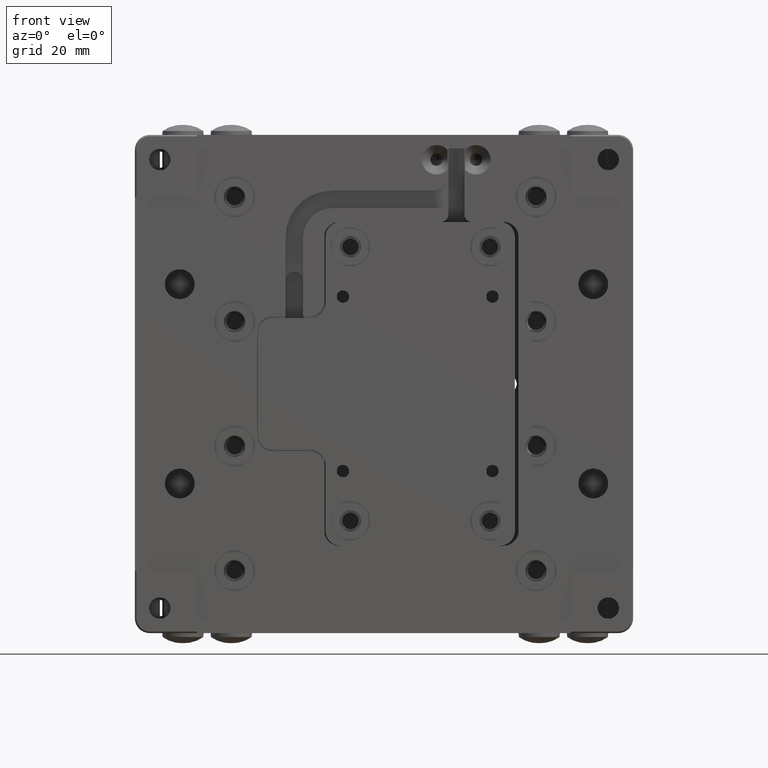
[diagram: clean part render]
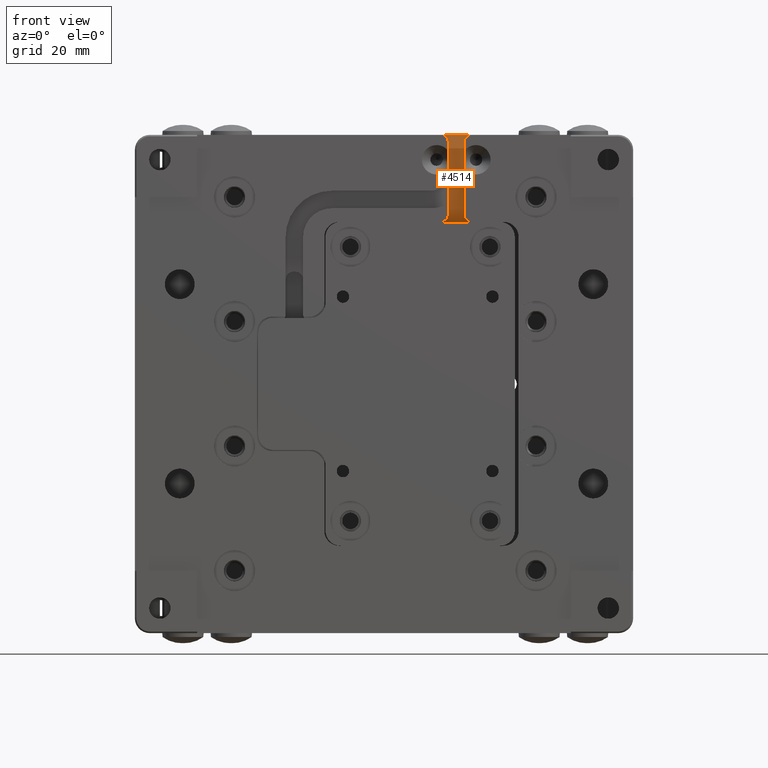
[diagram: same view with one face highlighted and labeled with its STEP entity id]
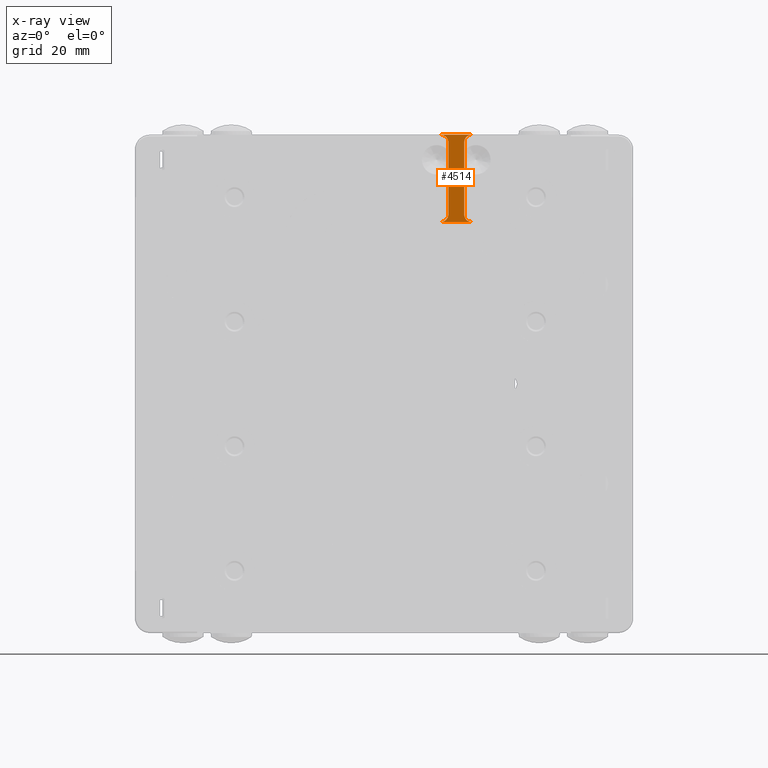
[diagram: x-ray of the same camera — body ghosted, the highlighted face saturated]
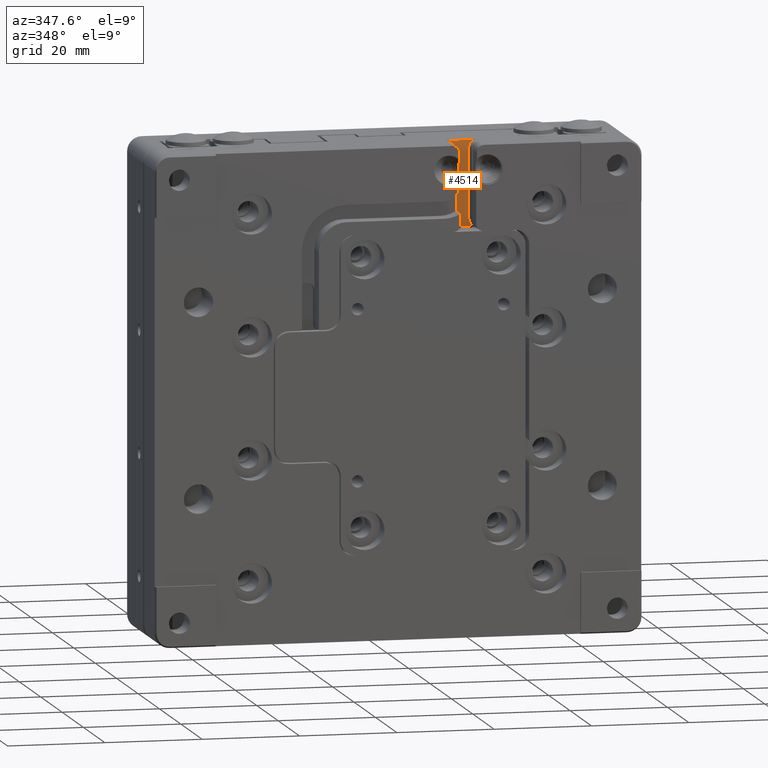
[diagram: same view with one face highlighted and labeled with its STEP entity id]
A machine part, front view. The second image highlights one B-rep face of the part: STEP entity #4514.
The next image is the same camera in x-ray: the body ghosted, the highlighted face saturated — about 0% of this face is hidden behind the body in this view.
A second angle (auxiliary view) of the same face is appended — the face is thin or edge-on in the first view.
In plain terms, the highlighted planar face has unit normal (-0, -1, -0).
Its self-contained STEP definition (entity closure, byte-faithful):
#1197 = CARTESIAN_POINT ( 'NONE',  ( 16.10000000000000100, -3.000000000000000900, 48.50000000000000000 ) ) ;
#1739 = VERTEX_POINT ( 'NONE', #53169 ) ;
#1752 = ORIENTED_EDGE ( 'NONE', *, *, #48388, .T. ) ;
#2410 = CARTESIAN_POINT ( 'NONE',  ( 12.90000000000000200, -3.000000000000003100, 33.80365045915063900 ) ) ;
#3041 = DIRECTION ( 'NONE',  ( -1.000000000000000000, -0.0000000000000000000, -0.0000000000000000000 ) ) ;
#4514 = ADVANCED_FACE ( 'NONE', ( #48471 ), #37076, .T. ) ;
#5496 = CARTESIAN_POINT ( 'NONE',  ( 16.10000000000000100, -3.000000000000000900, 34.00000000000000000 ) ) ;
#6003 = VECTOR ( 'NONE', #31490, 1000.000000000000000 ) ;
#6344 = CARTESIAN_POINT ( 'NONE',  ( 17.60000000000000100, -3.000000000000001800, 32.50000000000000000 ) ) ;
#6695 = CARTESIAN_POINT ( 'NONE',  ( 16.84251470758528800, -3.000000000000000400, 32.69009358273518700 ) ) ;
#6913 = CARTESIAN_POINT ( 'NONE',  ( 12.15748529241225700, -3.000000000000000400, 49.80990641726570800 ) ) ;
#9582 = CARTESIAN_POINT ( 'NONE',  ( 17.59999999999999800, -3.000000000000001300, 50.00000000000000000 ) ) ;
#10454 = VECTOR ( 'NONE', #3041, 1000.000000000000000 ) ;
#10780 = CARTESIAN_POINT ( 'NONE',  ( 11.79262182653892300, -3.000000000000003100, 32.53904098499754100 ) ) ;
#10973 = CARTESIAN_POINT ( 'NONE',  ( 16.39889535832353900, -2.999999999999999600, 33.07968134325136600 ) ) ;
#11190 = CARTESIAN_POINT ( 'NONE',  ( 12.60110464167482100, -2.999999999999999600, 49.42031865675186000 ) ) ;
#11531 = CARTESIAN_POINT ( 'NONE',  ( 17.77123113917000600, -3.000000000000000000, 50.35000000000000900 ) ) ;
#11626 = CARTESIAN_POINT ( 'NONE',  ( 11.40000000000000200, -3.000000000000001300, 50.00000000000000000 ) ) ;
#11844 = EDGE_CURVE ( 'NONE', #20917, #35628, #51323, .T. ) ;
#13770 = ORIENTED_EDGE ( 'NONE', *, *, #29040, .F. ) ;
#13874 = CARTESIAN_POINT ( 'NONE',  ( 17.20737817346107700, -3.000000000000003100, 49.96095901500248700 ) ) ;
#13992 = CARTESIAN_POINT ( 'NONE',  ( 16.10000000000000100, -3.000000000000000000, 41.25000000000000000 ) ) ;
#13998 = EDGE_CURVE ( 'NONE', #37750, #1739, #38936, .T. ) ;
#14369 = CARTESIAN_POINT ( 'NONE',  ( 12.90000000000000200, -3.000000000000000900, 34.00000000000000000 ) ) ;
#14410 = CARTESIAN_POINT ( 'NONE',  ( 12.90000000000000200, -3.000000000000000000, 41.25000000000000700 ) ) ;
#15250 = CARTESIAN_POINT ( 'NONE',  ( 16.13806023374435800, -3.000000000000000400, 33.60955549786709200 ) ) ;
#15475 = CARTESIAN_POINT ( 'NONE',  ( 12.86193976625565200, -3.000000000000000400, 48.89044450213366800 ) ) ;
#15678 = LINE ( 'NONE', #14410, #38346 ) ;
#15843 = DIRECTION ( 'NONE',  ( -0.0000000000000000000, -1.000000000000000000, -0.0000000000000000000 ) ) ;
#18166 = CARTESIAN_POINT ( 'NONE',  ( 16.67817992003763200, -3.000000000000003100, 49.69950026359728700 ) ) ;
#19361 = CARTESIAN_POINT ( 'NONE',  ( 12.15542847055634800, -3.000000000000002700, 32.68932041746860800 ) ) ;
#19411 = CARTESIAN_POINT ( 'NONE',  ( 12.90000000000000400, -3.000000000000000900, 48.50000000000000000 ) ) ;
#19496 = EDGE_CURVE ( 'NONE', #20917, #48445, #41903, .T. ) ;
#19551 = CARTESIAN_POINT ( 'NONE',  ( 16.10000000000000100, -3.000000000000000900, 34.00000000000000000 ) ) ;
#19786 = CARTESIAN_POINT ( 'NONE',  ( 12.90000000000000400, -3.000000000000000900, 48.50000000000000000 ) ) ;
#20917 = VERTEX_POINT ( 'NONE', #51955 ) ;
#21144 = AXIS2_PLACEMENT_3D ( 'NONE', #11531, #15843, #45633 ) ;
#21461 = VERTEX_POINT ( 'NONE', #5496 ) ;
#21630 = ORIENTED_EDGE ( 'NONE', *, *, #28162, .T. ) ;
#22458 = CARTESIAN_POINT ( 'NONE',  ( 16.28932041746861600, -3.000000000000003100, 49.25542847055636000 ) ) ;
#22563 = VECTOR ( 'NONE', #35225, 1000.000000000000000 ) ;
#23661 = CARTESIAN_POINT ( 'NONE',  ( 12.59950026359727500, -3.000000000000002700, 33.07817992003762000 ) ) ;
#23891 = CARTESIAN_POINT ( 'NONE',  ( 11.59872161138881300, -2.999999999999999600, 50.00000000000000000 ) ) ;
#26759 = CARTESIAN_POINT ( 'NONE',  ( 16.10000000000000100, -3.000000000000003100, 48.69634954084936900 ) ) ;
#26977 = B_SPLINE_CURVE_WITH_KNOTS ( 'NONE', 3,
 ( #53695, #23891, #32435, #6913, #36704, #11190, #40992, #15475, #45282, #19786 ),
 .UNSPECIFIED., .F., .F.,
 ( 4, 2, 2, 2, 4 ),
 ( 0.0000000000000000000, 0.2500000000000000000, 0.5000000000000000000, 0.7500000000000000000, 1.000000000000000000 ),
 .UNSPECIFIED. ) ;
#27293 = DIRECTION ( 'NONE',  ( -0.0000000000000000000, -0.0000000000000000000, 1.000000000000000000 ) ) ;
#27962 = CARTESIAN_POINT ( 'NONE',  ( 12.86095901500247700, -3.000000000000003100, 33.60737817346107900 ) ) ;
#27974 = CARTESIAN_POINT ( 'NONE',  ( 17.40127838861150900, -2.999999999999999600, 32.50000000000000000 ) ) ;
#28162 = EDGE_CURVE ( 'NONE', #37750, #51390, #54458, .T. ) ;
#28296 = ORIENTED_EDGE ( 'NONE', *, *, #50738, .T. ) ;
#28589 = CARTESIAN_POINT ( 'NONE',  ( 0.0000000000000000000, -3.000000000000001300, 50.00000000000000000 ) ) ;
#29040 = EDGE_CURVE ( 'NONE', #48445, #37819, #15678, .T. ) ;
#31490 = DIRECTION ( 'NONE',  ( 1.000000000000000000, 0.0000000000000000000, 0.0000000000000000000 ) ) ;
#31713 = CARTESIAN_POINT ( 'NONE',  ( 17.60000000000000100, -3.000000000000001800, 32.50000000000000000 ) ) ;
#32184 = CARTESIAN_POINT ( 'NONE',  ( 12.90000000000000200, -3.000000000000000900, 34.00000000000000000 ) ) ;
#32204 = CARTESIAN_POINT ( 'NONE',  ( 17.20943499531944800, -3.000000000000000400, 32.53826781973096200 ) ) ;
#32435 = CARTESIAN_POINT ( 'NONE',  ( 11.79056500468302600, -3.000000000000000400, 49.96173218026816400 ) ) ;
#34241 = B_SPLINE_CURVE_WITH_KNOTS ( 'NONE', 3,
 ( #6344, #27974, #32204, #6695, #36507, #10973, #40790, #15250, #45074, #19551 ),
 .UNSPECIFIED., .F., .F.,
 ( 4, 2, 2, 2, 4 ),
 ( 0.0000000000000000000, 0.2500000000000000000, 0.5000000000000000000, 0.7500000000000000000, 1.000000000000000000 ),
 .UNSPECIFIED. ) ;
#34910 = CARTESIAN_POINT ( 'NONE',  ( 17.40365045915064400, -3.000000000000001800, 49.99999999999999300 ) ) ;
#35214 = LINE ( 'NONE', #13992, #22563 ) ;
#35225 = DIRECTION ( 'NONE',  ( 0.0000000000000000000, 0.0000000000000000000, 1.000000000000000000 ) ) ;
#35628 = VERTEX_POINT ( 'NONE', #31713 ) ;
#35788 = CARTESIAN_POINT ( 'NONE',  ( 7.499999999999999100, -3.000000000000001300, 32.50000000000000000 ) ) ;
#35806 = CARTESIAN_POINT ( 'NONE',  ( 17.59999999999999800, -3.000000000000001300, 50.00000000000000000 ) ) ;
#36507 = CARTESIAN_POINT ( 'NONE',  ( 16.67978429811682200, -3.000000000000000400, 32.79899831318900300 ) ) ;
#36704 = CARTESIAN_POINT ( 'NONE',  ( 12.32021570188483900, -3.000000000000000400, 49.70100168680780000 ) ) ;
#37076 = PLANE ( 'NONE',  #21144 ) ;
#37750 = VERTEX_POINT ( 'NONE', #35806 ) ;
#37819 = VERTEX_POINT ( 'NONE', #19411 ) ;
#38346 = VECTOR ( 'NONE', #27293, 1000.000000000000000 ) ;
#38936 = B_SPLINE_CURVE_WITH_KNOTS ( 'NONE', 3,
 ( #9582, #34910, #13874, #43671, #18166, #47935, #22458, #52239, #26759, #1197 ),
 .UNSPECIFIED., .F., .F.,
 ( 4, 2, 2, 2, 4 ),
 ( 0.0000000000000000000, 0.2500000000000000000, 0.5000000000000000000, 0.7500000000000000000, 1.000000000000000000 ),
 .UNSPECIFIED. ) ;
#40599 = CARTESIAN_POINT ( 'NONE',  ( 11.59634954084936200, -3.000000000000001800, 32.50000000000000000 ) ) ;
#40790 = CARTESIAN_POINT ( 'NONE',  ( 16.29030116872179000, -3.000000000000000400, 33.24239420503764100 ) ) ;
#40992 = CARTESIAN_POINT ( 'NONE',  ( 12.70969883127822600, -3.000000000000000400, 49.25760579496160600 ) ) ;
#41903 = B_SPLINE_CURVE_WITH_KNOTS ( 'NONE', 3,
 ( #44850, #40599, #10780, #19361, #49145, #23661, #53457, #27962, #2410, #32184 ),
 .UNSPECIFIED., .F., .F.,
 ( 4, 2, 2, 2, 4 ),
 ( 0.0000000000000000000, 0.2500000000000000000, 0.5000000000000000000, 0.7500000000000000000, 1.000000000000000000 ),
 .UNSPECIFIED. ) ;
#42008 = ORIENTED_EDGE ( 'NONE', *, *, #13998, .F. ) ;
#42662 = EDGE_CURVE ( 'NONE', #51390, #37819, #26977, .T. ) ;
#43671 = CARTESIAN_POINT ( 'NONE',  ( 16.84457152944364800, -3.000000000000002700, 49.81067958253137100 ) ) ;
#44850 = CARTESIAN_POINT ( 'NONE',  ( 11.40000000000000000, -3.000000000000001300, 32.50000000000000000 ) ) ;
#45074 = CARTESIAN_POINT ( 'NONE',  ( 16.10000000000000100, -3.000000000000000400, 33.80089721404964100 ) ) ;
#45282 = CARTESIAN_POINT ( 'NONE',  ( 12.90000000000000900, -3.000000000000000400, 48.69910278595111900 ) ) ;
#45633 = DIRECTION ( 'NONE',  ( -1.000000000000000000, 0.0000000000000000000, 0.0000000000000000000 ) ) ;
#47217 = EDGE_LOOP ( 'NONE', ( #21630, #53553, #13770, #48118, #48918, #28296, #1752, #42008 ) ) ;
#47935 = CARTESIAN_POINT ( 'NONE',  ( 16.40049973640272900, -3.000000000000002700, 49.42182007996237300 ) ) ;
#48118 = ORIENTED_EDGE ( 'NONE', *, *, #19496, .F. ) ;
#48388 = EDGE_CURVE ( 'NONE', #21461, #1739, #35214, .T. ) ;
#48445 = VERTEX_POINT ( 'NONE', #14369 ) ;
#48471 = FACE_OUTER_BOUND ( 'NONE', #47217, .T. ) ;
#48918 = ORIENTED_EDGE ( 'NONE', *, *, #11844, .T. ) ;
#49145 = CARTESIAN_POINT ( 'NONE',  ( 12.32182007996237700, -3.000000000000003100, 32.80049973640272800 ) ) ;
#50738 = EDGE_CURVE ( 'NONE', #35628, #21461, #34241, .T. ) ;
#51323 = LINE ( 'NONE', #35788, #6003 ) ;
#51390 = VERTEX_POINT ( 'NONE', #11626 ) ;
#51955 = CARTESIAN_POINT ( 'NONE',  ( 11.40000000000000000, -3.000000000000001300, 32.50000000000000000 ) ) ;
#52239 = CARTESIAN_POINT ( 'NONE',  ( 16.13904098499752800, -3.000000000000003100, 48.89262182653892100 ) ) ;
#53169 = CARTESIAN_POINT ( 'NONE',  ( 16.10000000000000100, -3.000000000000000900, 48.50000000000000000 ) ) ;
#53457 = CARTESIAN_POINT ( 'NONE',  ( 12.71067958253139100, -3.000000000000003100, 33.24457152944364700 ) ) ;
#53553 = ORIENTED_EDGE ( 'NONE', *, *, #42662, .T. ) ;
#53695 = CARTESIAN_POINT ( 'NONE',  ( 11.40000000000000200, -3.000000000000001300, 50.00000000000000000 ) ) ;
#54458 = LINE ( 'NONE', #28589, #10454 ) ;